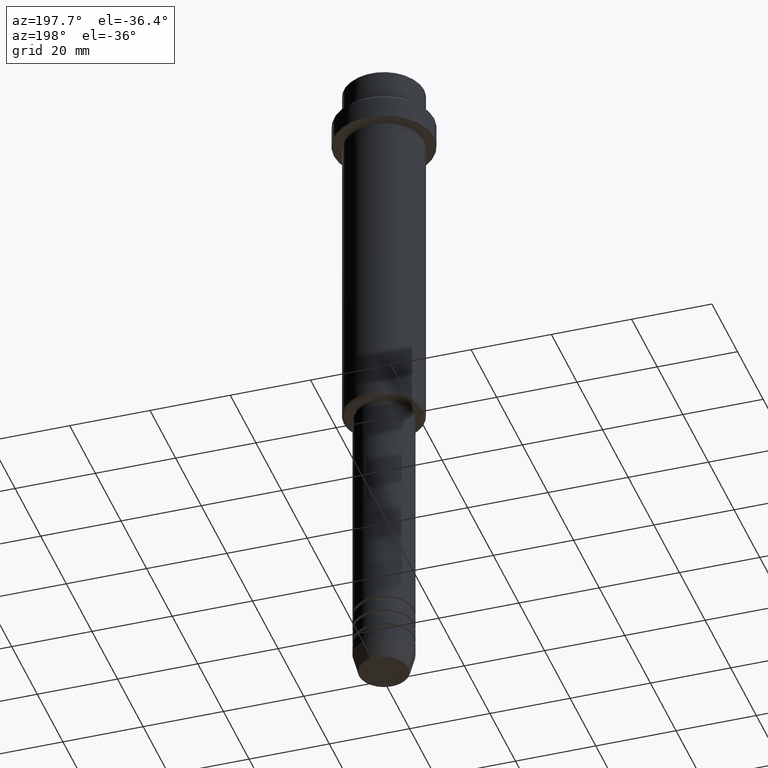
[diagram: clean part render]
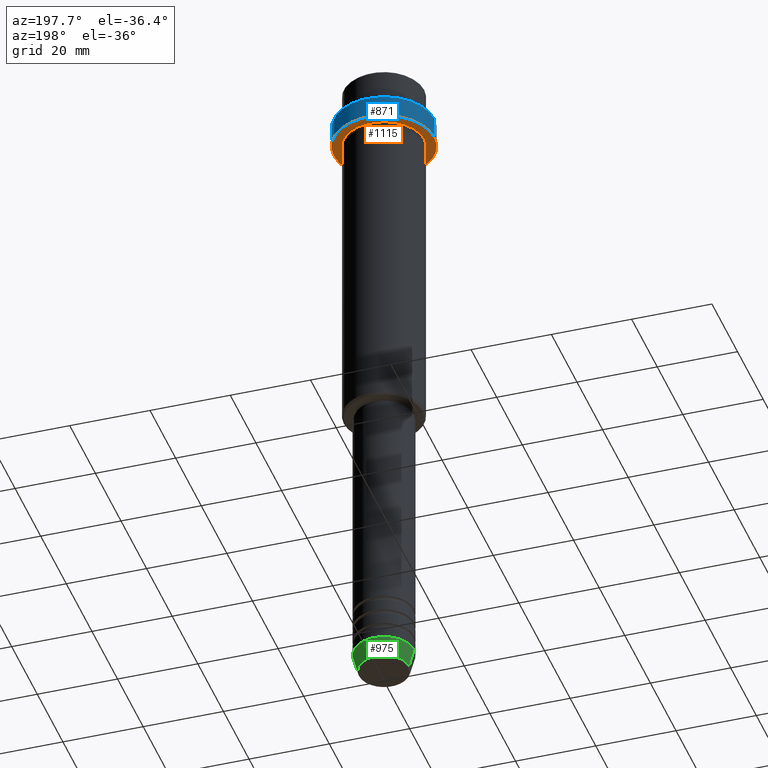
[diagram: same view with three faces highlighted in distinct colors, each labeled with its STEP entity id]
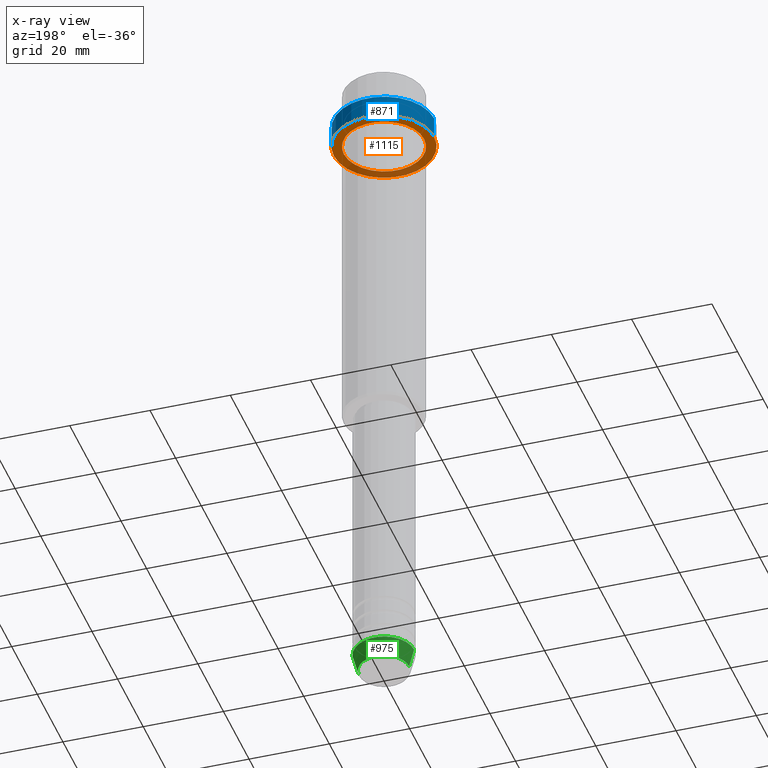
[diagram: x-ray of the same camera — body ghosted, the three highlighted faces saturated]
A machine part, auxiliary view with three faces highlighted in distinct colors.
The next image is the same camera in x-ray (body ghosted, the three faces saturated) — at least one of them is partly hidden behind the body in this view.
Their STEP definitions:

[orange] entity #1115 — the highlighted planar face has unit normal (0, 0, -1).
#5 = VERTEX_POINT ( 'NONE', #1281 ) ;
#46 = FACE_BOUND ( 'NONE', #429, .T. ) ;
#74 = CARTESIAN_POINT ( 'NONE',  ( 0.000000000000000000, 0.000000000000000000, -15.00000000000000000 ) ) ;
#79 = AXIS2_PLACEMENT_3D ( 'NONE', #499, #833, #132 ) ;
#106 = AXIS2_PLACEMENT_3D ( 'NONE', #1180, #836, #635 ) ;
#132 = DIRECTION ( 'NONE',  ( 1.000000000000000000, 0.000000000000000000, 0.000000000000000000 ) ) ;
#240 = VERTEX_POINT ( 'NONE', #562 ) ;
#273 = VERTEX_POINT ( 'NONE', #1294 ) ;
#276 = PLANE ( 'NONE',  #719 ) ;
#302 = ORIENTED_EDGE ( 'NONE', *, *, #1242, .T. ) ;
#313 = CIRCLE ( 'NONE', #79, 12.50000000000000000 ) ;
#347 = ORIENTED_EDGE ( 'NONE', *, *, #645, .F. ) ;
#390 = CARTESIAN_POINT ( 'NONE',  ( 0.000000000000000000, 12.50000000000000000, -15.00000000000000000 ) ) ;
#416 = DIRECTION ( 'NONE',  ( -1.000000000000000000, 0.000000000000000000, 0.000000000000000000 ) ) ;
#429 = EDGE_LOOP ( 'NONE', ( #302, #941 ) ) ;
#499 = CARTESIAN_POINT ( 'NONE',  ( 0.000000000000000000, 0.000000000000000000, -15.00000000000000178 ) ) ;
#502 = DIRECTION ( 'NONE',  ( -1.000000000000000000, 0.000000000000000000, -0.000000000000000000 ) ) ;
#512 = ORIENTED_EDGE ( 'NONE', *, *, #1261, .F. ) ;
#521 = EDGE_CURVE ( 'NONE', #761, #273, #1077, .T. ) ;
#562 = CARTESIAN_POINT ( 'NONE',  ( 12.50000000000000000, 0.000000000000000000, -15.00000000000000178 ) ) ;
#635 = DIRECTION ( 'NONE',  ( 1.000000000000000000, 0.000000000000000000, 0.000000000000000000 ) ) ;
#638 = DIRECTION ( 'NONE',  ( -0.000000000000000000, -0.000000000000000000, 1.000000000000000000 ) ) ;
#645 = EDGE_CURVE ( 'NONE', #240, #5, #313, .T. ) ;
#719 = AXIS2_PLACEMENT_3D ( 'NONE', #390, #1131, #502 ) ;
#759 = CARTESIAN_POINT ( 'NONE',  ( 0.000000000000000000, 0.000000000000000000, -15.00000000000000000 ) ) ;
#761 = VERTEX_POINT ( 'NONE', #1058 ) ;
#833 = DIRECTION ( 'NONE',  ( -0.000000000000000000, -0.000000000000000000, 1.000000000000000000 ) ) ;
#836 = DIRECTION ( 'NONE',  ( -0.000000000000000000, -0.000000000000000000, 1.000000000000000000 ) ) ;
#839 = AXIS2_PLACEMENT_3D ( 'NONE', #74, #946, #416 ) ;
#862 = EDGE_LOOP ( 'NONE', ( #347, #512 ) ) ;
#941 = ORIENTED_EDGE ( 'NONE', *, *, #521, .T. ) ;
#946 = DIRECTION ( 'NONE',  ( -0.000000000000000000, -0.000000000000000000, 1.000000000000000000 ) ) ;
#1024 = FACE_OUTER_BOUND ( 'NONE', #862, .T. ) ;
#1058 = CARTESIAN_POINT ( 'NONE',  ( 9.999999999999994671, 1.224646799147352665E-15, -15.00000000000000000 ) ) ;
#1077 = CIRCLE ( 'NONE', #1104, 9.999999999999994671 ) ;
#1104 = AXIS2_PLACEMENT_3D ( 'NONE', #759, #638, #1203 ) ;
#1115 = ADVANCED_FACE ( 'NONE', ( #46, #1024 ), #276, .T. ) ;
#1131 = DIRECTION ( 'NONE',  ( 0.000000000000000000, 0.000000000000000000, -1.000000000000000000 ) ) ;
#1155 = CIRCLE ( 'NONE', #106, 12.50000000000000000 ) ;
#1180 = CARTESIAN_POINT ( 'NONE',  ( 0.000000000000000000, 0.000000000000000000, -15.00000000000000178 ) ) ;
#1203 = DIRECTION ( 'NONE',  ( -1.000000000000000000, 0.000000000000000000, 0.000000000000000000 ) ) ;
#1242 = EDGE_CURVE ( 'NONE', #273, #761, #1345, .T. ) ;
#1261 = EDGE_CURVE ( 'NONE', #5, #240, #1155, .T. ) ;
#1281 = CARTESIAN_POINT ( 'NONE',  ( -12.50000000000000000, 1.530808498934191521E-15, -15.00000000000000178 ) ) ;
#1294 = CARTESIAN_POINT ( 'NONE',  ( -9.999999999999994671, 0.000000000000000000, -15.00000000000000000 ) ) ;
#1345 = CIRCLE ( 'NONE', #839, 9.999999999999994671 ) ;

[blue] entity #871 — the highlighted cylindrical surface (partial cylindrical patch) has radius 12.5 mm, axis along (-0, -0, 1).
#5 = VERTEX_POINT ( 'NONE', #1281 ) ;
#35 = DIRECTION ( 'NONE',  ( 0.000000000000000000, 0.000000000000000000, -1.000000000000000000 ) ) ;
#55 = CARTESIAN_POINT ( 'NONE',  ( 12.50000000000000000, 0.000000000000000000, -9.499999999999978684 ) ) ;
#79 = AXIS2_PLACEMENT_3D ( 'NONE', #499, #833, #132 ) ;
#113 = EDGE_CURVE ( 'NONE', #5, #640, #1031, .T. ) ;
#121 = LINE ( 'NONE', #353, #883 ) ;
#130 = DIRECTION ( 'NONE',  ( 1.000000000000000000, 0.000000000000000000, 0.000000000000000000 ) ) ;
#132 = DIRECTION ( 'NONE',  ( 1.000000000000000000, 0.000000000000000000, 0.000000000000000000 ) ) ;
#172 = AXIS2_PLACEMENT_3D ( 'NONE', #1008, #35, #1326 ) ;
#240 = VERTEX_POINT ( 'NONE', #562 ) ;
#313 = CIRCLE ( 'NONE', #79, 12.50000000000000000 ) ;
#343 = VECTOR ( 'NONE', #827, 1000.000000000000000 ) ;
#353 = CARTESIAN_POINT ( 'NONE',  ( 12.50000000000000000, 0.000000000000000000, 0.000000000000000000 ) ) ;
#469 = DIRECTION ( 'NONE',  ( -0.000000000000000000, -0.000000000000000000, 1.000000000000000000 ) ) ;
#499 = CARTESIAN_POINT ( 'NONE',  ( 0.000000000000000000, 0.000000000000000000, -15.00000000000000178 ) ) ;
#537 = CYLINDRICAL_SURFACE ( 'NONE', #768, 12.50000000000000000 ) ;
#549 = VERTEX_POINT ( 'NONE', #55 ) ;
#553 = ORIENTED_EDGE ( 'NONE', *, *, #113, .T. ) ;
#562 = CARTESIAN_POINT ( 'NONE',  ( 12.50000000000000000, 0.000000000000000000, -15.00000000000000178 ) ) ;
#640 = VERTEX_POINT ( 'NONE', #706 ) ;
#645 = EDGE_CURVE ( 'NONE', #240, #5, #313, .T. ) ;
#666 = CIRCLE ( 'NONE', #172, 12.50000000000000000 ) ;
#706 = CARTESIAN_POINT ( 'NONE',  ( -12.50000000000000000, 1.530808498934191521E-15, -9.499999999999978684 ) ) ;
#725 = CARTESIAN_POINT ( 'NONE',  ( 0.000000000000000000, 0.000000000000000000, 0.000000000000000000 ) ) ;
#768 = AXIS2_PLACEMENT_3D ( 'NONE', #725, #469, #130 ) ;
#827 = DIRECTION ( 'NONE',  ( -0.000000000000000000, -0.000000000000000000, 1.000000000000000000 ) ) ;
#833 = DIRECTION ( 'NONE',  ( -0.000000000000000000, -0.000000000000000000, 1.000000000000000000 ) ) ;
#871 = ADVANCED_FACE ( 'NONE', ( #968 ), #537, .T. ) ;
#883 = VECTOR ( 'NONE', #885, 1000.000000000000000 ) ;
#885 = DIRECTION ( 'NONE',  ( -0.000000000000000000, -0.000000000000000000, 1.000000000000000000 ) ) ;
#916 = ORIENTED_EDGE ( 'NONE', *, *, #1322, .F. ) ;
#923 = ORIENTED_EDGE ( 'NONE', *, *, #645, .T. ) ;
#940 = CARTESIAN_POINT ( 'NONE',  ( -12.50000000000000000, 1.530808498934191521E-15, 0.000000000000000000 ) ) ;
#962 = EDGE_CURVE ( 'NONE', #640, #549, #666, .T. ) ;
#968 = FACE_OUTER_BOUND ( 'NONE', #1255, .T. ) ;
#1008 = CARTESIAN_POINT ( 'NONE',  ( 0.000000000000000000, 0.000000000000000000, -9.499999999999978684 ) ) ;
#1031 = LINE ( 'NONE', #940, #343 ) ;
#1040 = ORIENTED_EDGE ( 'NONE', *, *, #962, .T. ) ;
#1255 = EDGE_LOOP ( 'NONE', ( #923, #553, #1040, #916 ) ) ;
#1281 = CARTESIAN_POINT ( 'NONE',  ( -12.50000000000000000, 1.530808498934191521E-15, -15.00000000000000178 ) ) ;
#1322 = EDGE_CURVE ( 'NONE', #240, #549, #121, .T. ) ;
#1326 = DIRECTION ( 'NONE',  ( 1.000000000000000000, 0.000000000000000000, 0.000000000000000000 ) ) ;

[green] entity #975 — the highlighted conical surface has half-angle 15 deg.
#19 = CIRCLE ( 'NONE', #266, 7.500000000000000000 ) ;
#71 = VERTEX_POINT ( 'NONE', #895 ) ;
#78 = EDGE_LOOP ( 'NONE', ( #331, #374, #255, #1336 ) ) ;
#116 = EDGE_CURVE ( 'NONE', #1259, #71, #1053, .T. ) ;
#117 = DIRECTION ( 'NONE',  ( -0.2588190451025213501, 3.169619151431772337E-17, 0.9659258262890680902 ) ) ;
#131 = VECTOR ( 'NONE', #117, 1000.000000000000000 ) ;
#196 = CONICAL_SURFACE ( 'NONE', #511, 7.500000000000000000, 0.2617993877991500740 ) ;
#255 = ORIENTED_EDGE ( 'NONE', *, *, #274, .F. ) ;
#266 = AXIS2_PLACEMENT_3D ( 'NONE', #340, #434, #1380 ) ;
#274 = EDGE_CURVE ( 'NONE', #373, #1119, #19, .T. ) ;
#331 = ORIENTED_EDGE ( 'NONE', *, *, #116, .T. ) ;
#340 = CARTESIAN_POINT ( 'NONE',  ( 0.000000000000000000, 0.000000000000000000, -164.9999999999999716 ) ) ;
#373 = VERTEX_POINT ( 'NONE', #806 ) ;
#374 = ORIENTED_EDGE ( 'NONE', *, *, #988, .T. ) ;
#434 = DIRECTION ( 'NONE',  ( -0.000000000000000000, -0.000000000000000000, 1.000000000000000000 ) ) ;
#446 = DIRECTION ( 'NONE',  ( 1.000000000000000000, 0.000000000000000000, 0.000000000000000000 ) ) ;
#511 = AXIS2_PLACEMENT_3D ( 'NONE', #775, #782, #446 ) ;
#515 = CARTESIAN_POINT ( 'NONE',  ( 6.259553456999438659, 0.000000000000000000, -169.6294095225512422 ) ) ;
#525 = LINE ( 'NONE', #1402, #1290 ) ;
#720 = CARTESIAN_POINT ( 'NONE',  ( 0.000000000000000000, 0.000000000000000000, -169.6294095225512422 ) ) ;
#775 = CARTESIAN_POINT ( 'NONE',  ( 0.000000000000000000, 0.000000000000000000, -164.9999999999999716 ) ) ;
#782 = DIRECTION ( 'NONE',  ( -0.000000000000000000, -0.000000000000000000, 1.000000000000000000 ) ) ;
#806 = CARTESIAN_POINT ( 'NONE',  ( 7.500000000000000000, 0.000000000000000000, -164.9999999999999716 ) ) ;
#886 = CARTESIAN_POINT ( 'NONE',  ( -7.500000000000000000, 9.184850993605147944E-16, -164.9999999999999716 ) ) ;
#895 = CARTESIAN_POINT ( 'NONE',  ( -6.259553456999438659, 8.425296549405629486E-16, -169.6294095225512422 ) ) ;
#939 = CARTESIAN_POINT ( 'NONE',  ( -7.500000000000000000, 9.184850993605147944E-16, -164.9999999999999716 ) ) ;
#975 = ADVANCED_FACE ( 'NONE', ( #983 ), #196, .T. ) ;
#983 = FACE_OUTER_BOUND ( 'NONE', #78, .T. ) ;
#988 = EDGE_CURVE ( 'NONE', #71, #1119, #1334, .T. ) ;
#1053 = CIRCLE ( 'NONE', #1102, 6.259553456999438659 ) ;
#1102 = AXIS2_PLACEMENT_3D ( 'NONE', #720, #1270, #1274 ) ;
#1119 = VERTEX_POINT ( 'NONE', #939 ) ;
#1168 = DIRECTION ( 'NONE',  ( 0.2588190451025213501, 0.000000000000000000, 0.9659258262890680902 ) ) ;
#1190 = EDGE_CURVE ( 'NONE', #1259, #373, #525, .T. ) ;
#1259 = VERTEX_POINT ( 'NONE', #515 ) ;
#1270 = DIRECTION ( 'NONE',  ( -0.000000000000000000, -0.000000000000000000, 1.000000000000000000 ) ) ;
#1274 = DIRECTION ( 'NONE',  ( 1.000000000000000000, 0.000000000000000000, 0.000000000000000000 ) ) ;
#1290 = VECTOR ( 'NONE', #1168, 1000.000000000000000 ) ;
#1334 = LINE ( 'NONE', #886, #131 ) ;
#1336 = ORIENTED_EDGE ( 'NONE', *, *, #1190, .F. ) ;
#1380 = DIRECTION ( 'NONE',  ( 1.000000000000000000, 0.000000000000000000, 0.000000000000000000 ) ) ;
#1402 = CARTESIAN_POINT ( 'NONE',  ( 7.500000000000000000, 0.000000000000000000, -164.9999999999999716 ) ) ;